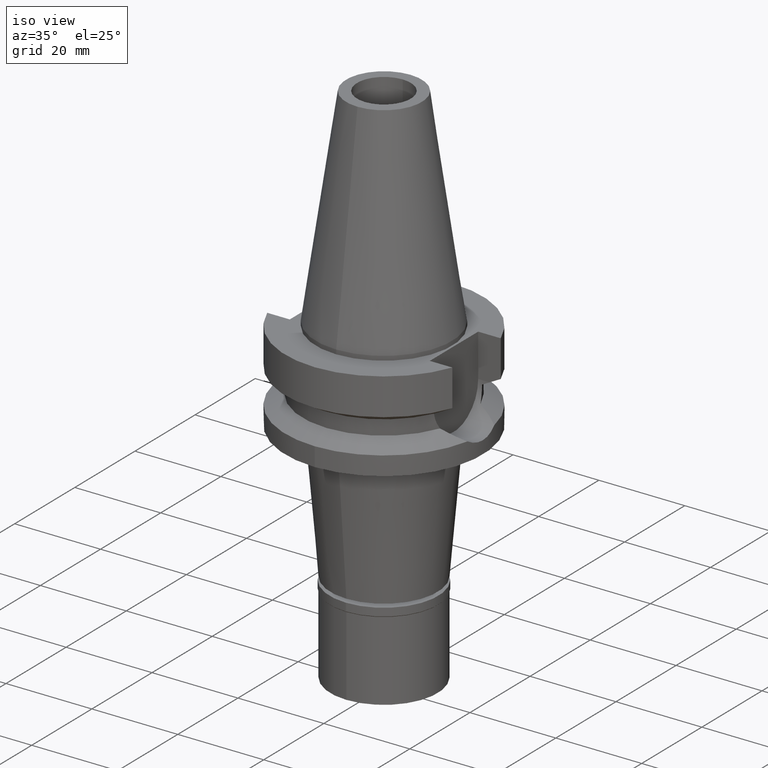
[diagram: clean part render]
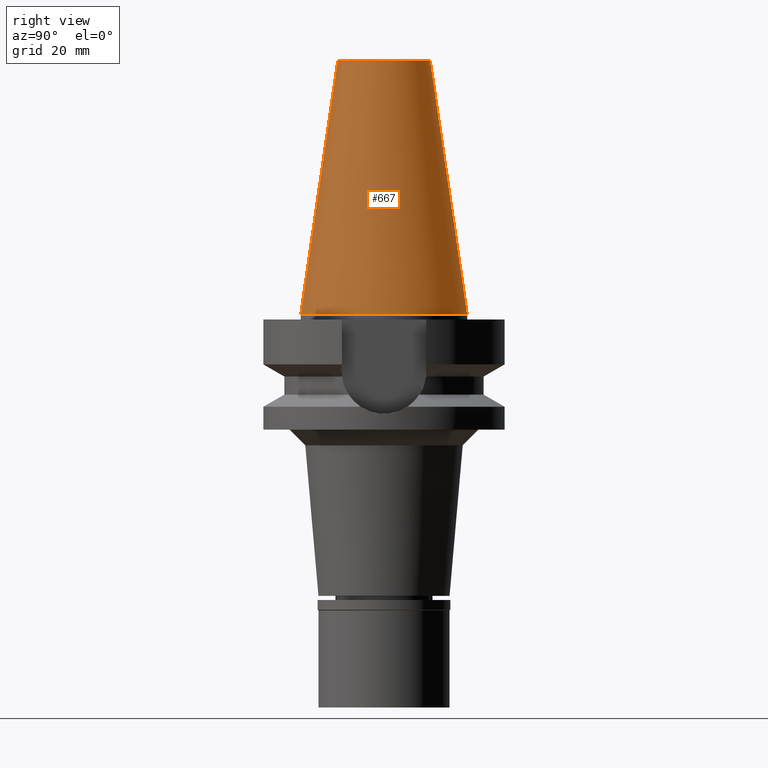
[diagram: tour spotlight — one face highlighted and labeled with its STEP entity id]
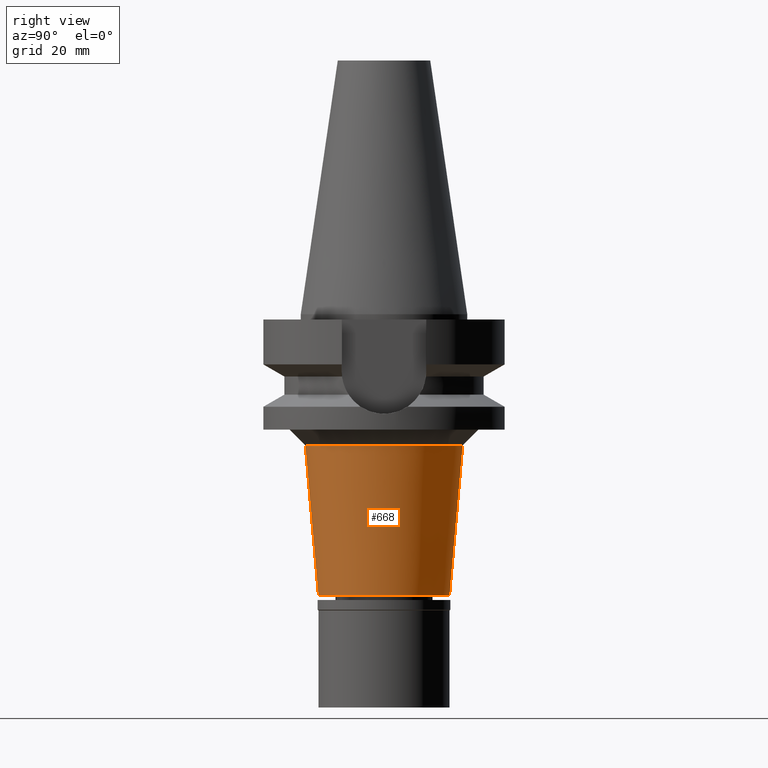
[diagram: tour spotlight — one face highlighted and labeled with its STEP entity id]
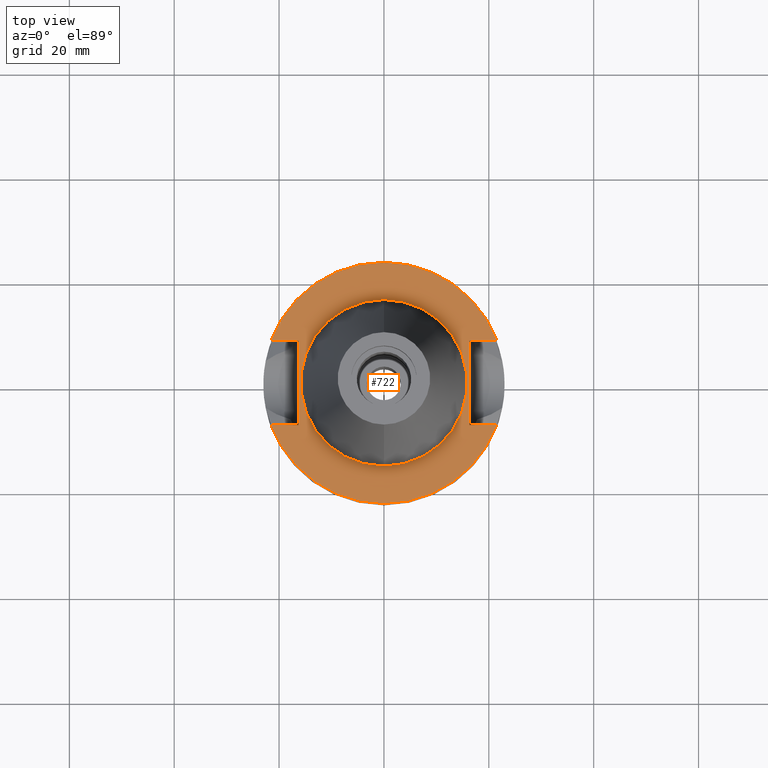
[diagram: tour spotlight — one face highlighted and labeled with its STEP entity id]
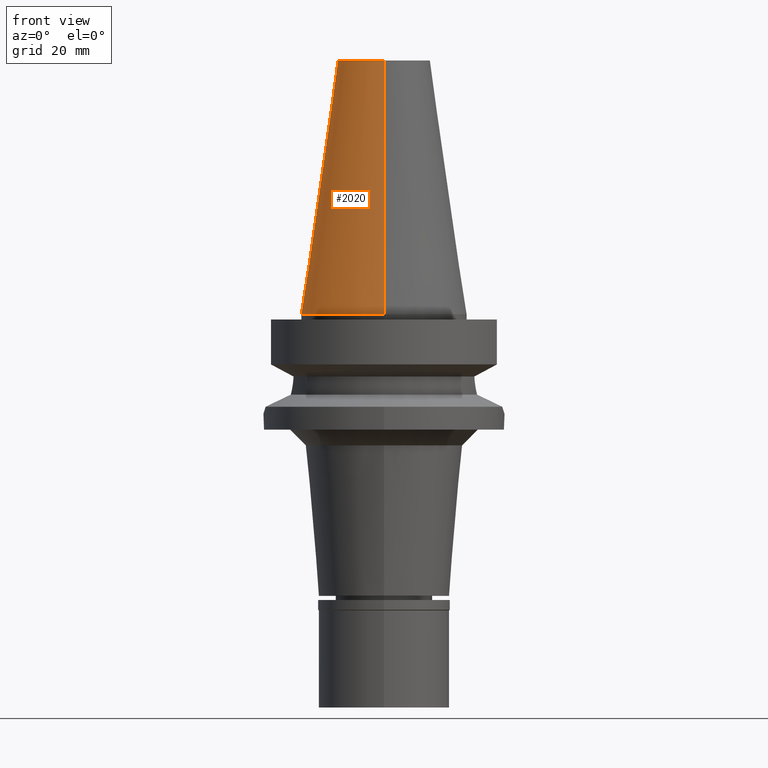
[diagram: tour spotlight — one face highlighted and labeled with its STEP entity id]
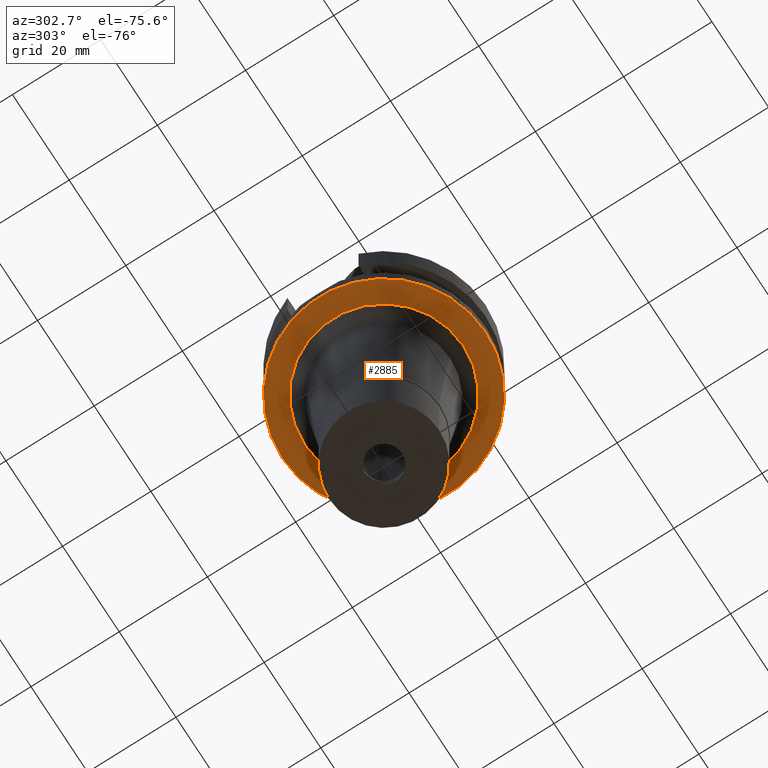
[diagram: tour spotlight — one face highlighted and labeled with its STEP entity id]
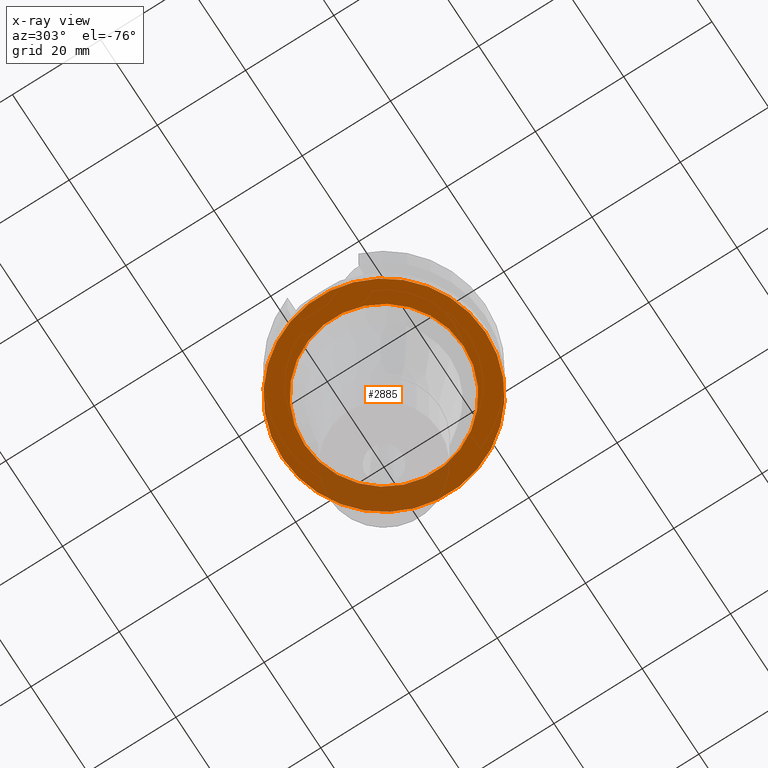
[diagram: x-ray of the same camera — body ghosted, this tour face saturated]
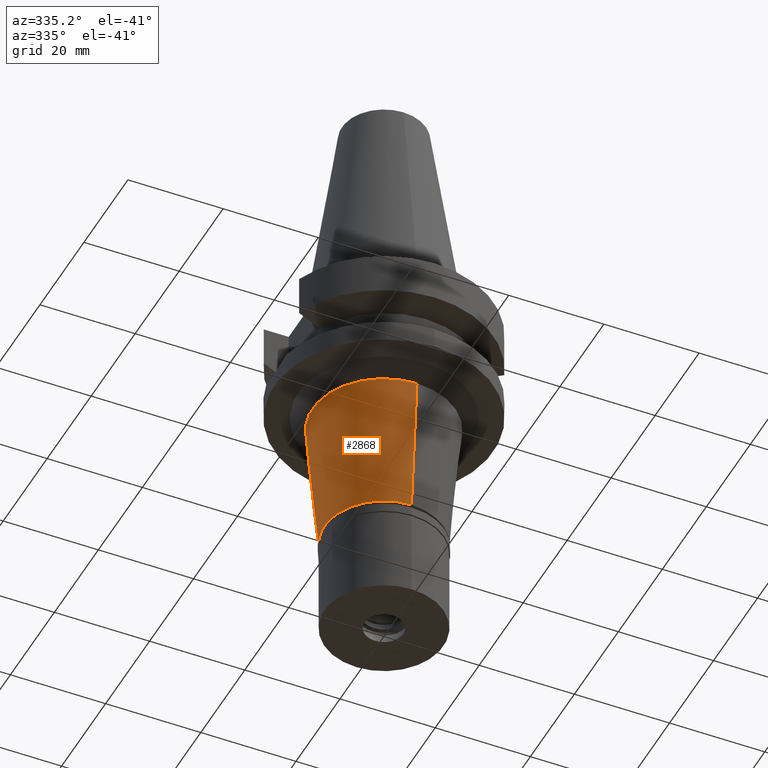
[diagram: tour spotlight — one face highlighted and labeled with its STEP entity id]
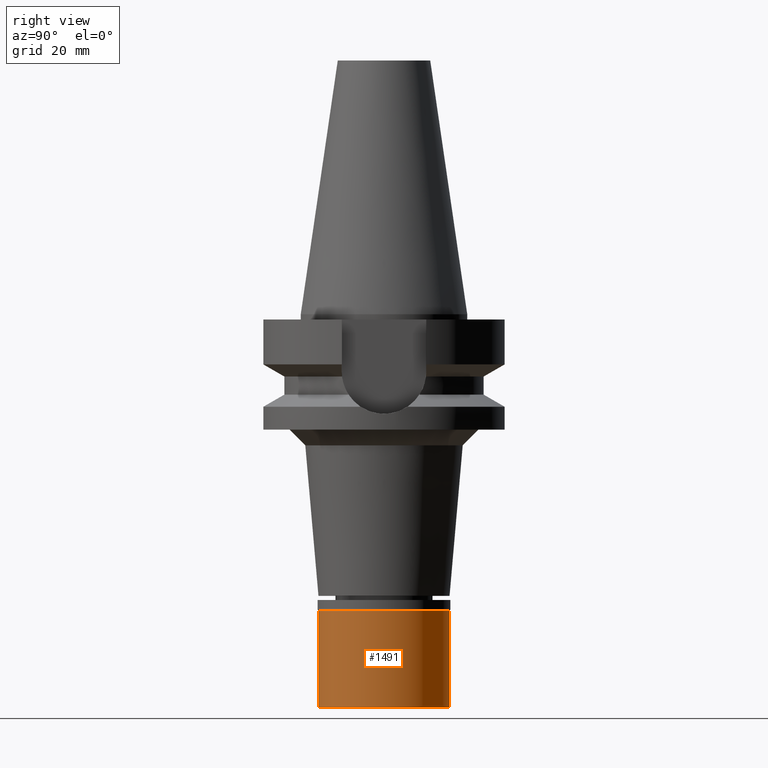
[diagram: tour spotlight — one face highlighted and labeled with its STEP entity id]
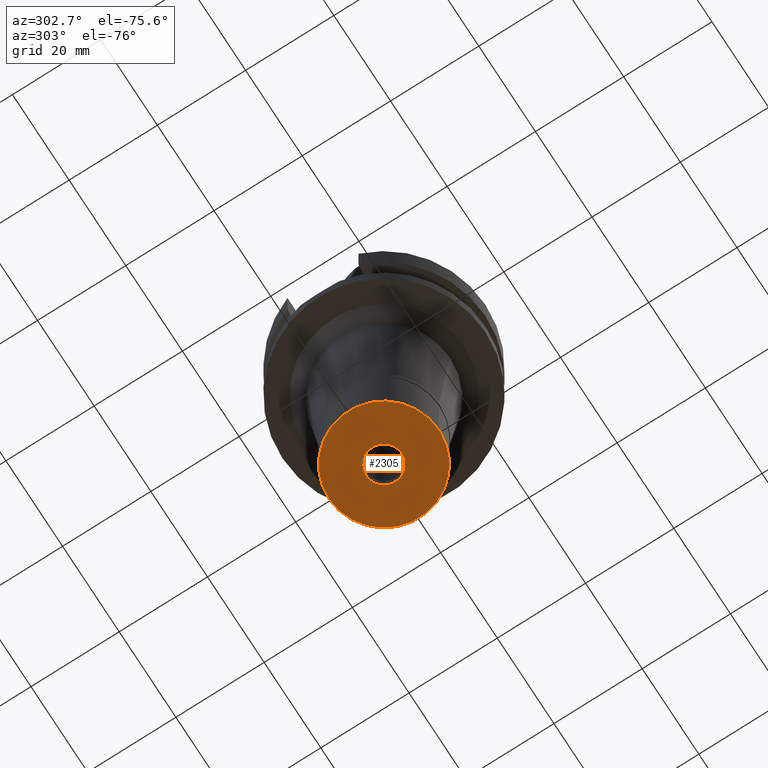
[diagram: tour spotlight — one face highlighted and labeled with its STEP entity id]
A machine part: a face-by-face anatomy tour. The part has 79 B-rep faces; the first image is the clean iso view, then the 8 largest visible faces are spotlighted one at a time (largest first), each with its STEP entity span.

Face 1 — right view, entity #667. In plain terms, the highlighted conical surface has half-angle 8.297 deg.
Definition (entity closure, byte-faithful):
#148 = CIRCLE ( 'NONE', #1289, 15.87500000000000000 ) ;
#263 = DIRECTION ( 'NONE',  ( 0.0000000000000000000, -1.000000000000000000, 0.0000000000000000000 ) ) ;
#347 = VECTOR ( 'NONE', #2709, 1000.000000000000114 ) ;
#378 = ORIENTED_EDGE ( 'NONE', *, *, #1412, .F. ) ;
#443 = CONICAL_SURFACE ( 'NONE', #1953, 12.34589586639000025, 0.1448099680379422438 ) ;
#540 = LINE ( 'NONE', #1994, #347 ) ;
#667 = ADVANCED_FACE ( 'NONE', ( #1416 ), #443, .T. ) ;
#700 = VERTEX_POINT ( 'NONE', #718 ) ;
#718 = CARTESIAN_POINT ( 'NONE',  ( 0.0000000000000000000, -15.87500000000000000, -3.410605131648000255E-13 ) ) ;
#924 = CIRCLE ( 'NONE', #1708, 8.816791732783000768 ) ;
#990 = VERTEX_POINT ( 'NONE', #2731 ) ;
#1059 = LINE ( 'NONE', #2755, #1083 ) ;
#1083 = VECTOR ( 'NONE', #1792, 1000.000000000000114 ) ;
#1289 = AXIS2_PLACEMENT_3D ( 'NONE', #1780, #2254, #2938 ) ;
#1412 = EDGE_CURVE ( 'NONE', #3051, #700, #148, .T. ) ;
#1414 = ORIENTED_EDGE ( 'NONE', *, *, #1427, .T. ) ;
#1416 = FACE_OUTER_BOUND ( 'NONE', #1781, .T. ) ;
#1427 = EDGE_CURVE ( 'NONE', #990, #700, #1059, .T. ) ;
#1708 = AXIS2_PLACEMENT_3D ( 'NONE', #1814, #2072, #2759 ) ;
#1780 = CARTESIAN_POINT ( 'NONE',  ( 0.0000000000000000000, 0.0000000000000000000, -3.410605131648000255E-13 ) ) ;
#1781 = EDGE_LOOP ( 'NONE', ( #1894, #1414, #378, #2650 ) ) ;
#1792 = DIRECTION ( 'NONE',  ( 0.0000000000000000000, -0.1443043893539925626, -0.9895333461855498891 ) ) ;
#1814 = CARTESIAN_POINT ( 'NONE',  ( 0.0000000000000000000, 0.0000000000000000000, 48.39999999999999858 ) ) ;
#1885 = CARTESIAN_POINT ( 'NONE',  ( 0.0000000000000000000, 15.87500000000000000, -1.136868377215999875E-13 ) ) ;
#1894 = ORIENTED_EDGE ( 'NONE', *, *, #2911, .T. ) ;
#1953 = AXIS2_PLACEMENT_3D ( 'NONE', #2388, #2820, #263 ) ;
#1994 = CARTESIAN_POINT ( 'NONE',  ( 0.0000000000000000000, 8.816791732783000768, 48.39999999999999858 ) ) ;
#2072 = DIRECTION ( 'NONE',  ( 0.0000000000000000000, 0.0000000000000000000, -1.000000000000000000 ) ) ;
#2254 = DIRECTION ( 'NONE',  ( 0.0000000000000000000, 0.0000000000000000000, -1.000000000000000000 ) ) ;
#2388 = CARTESIAN_POINT ( 'NONE',  ( 0.0000000000000000000, 0.0000000000000000000, 24.19999999999999929 ) ) ;
#2390 = CARTESIAN_POINT ( 'NONE',  ( 0.0000000000000000000, 8.816791732783000768, 48.39999999999999858 ) ) ;
#2650 = ORIENTED_EDGE ( 'NONE', *, *, #2746, .F. ) ;
#2678 = VERTEX_POINT ( 'NONE', #2390 ) ;
#2709 = DIRECTION ( 'NONE',  ( 0.0000000000000000000, 0.1443043893539925626, -0.9895333461855498891 ) ) ;
#2731 = CARTESIAN_POINT ( 'NONE',  ( 0.0000000000000000000, -8.816791732783000768, 48.39999999999999858 ) ) ;
#2746 = EDGE_CURVE ( 'NONE', #2678, #3051, #540, .T. ) ;
#2755 = CARTESIAN_POINT ( 'NONE',  ( 0.0000000000000000000, -8.816791732783000768, 48.39999999999999858 ) ) ;
#2759 = DIRECTION ( 'NONE',  ( 0.0000000000000000000, 1.000000000000000000, 0.0000000000000000000 ) ) ;
#2820 = DIRECTION ( 'NONE',  ( 0.0000000000000000000, 0.0000000000000000000, -1.000000000000000000 ) ) ;
#2911 = EDGE_CURVE ( 'NONE', #2678, #990, #924, .T. ) ;
#2938 = DIRECTION ( 'NONE',  ( 0.0000000000000000000, 1.000000000000000000, 0.0000000000000000000 ) ) ;
#3051 = VERTEX_POINT ( 'NONE', #1885 ) ;

Face 2 — right view, entity #668. In plain terms, the highlighted conical surface has half-angle 5 deg.
Definition (entity closure, byte-faithful):
#50 = EDGE_CURVE ( 'NONE', #1964, #564, #131, .T. ) ;
#131 = CIRCLE ( 'NONE', #1518, 12.50000000000000000 ) ;
#133 = VECTOR ( 'NONE', #949, 1000.000000000000000 ) ;
#460 = DIRECTION ( 'NONE',  ( 0.0000000000000000000, 1.000000000000000000, 0.0000000000000000000 ) ) ;
#564 = VERTEX_POINT ( 'NONE', #2539 ) ;
#595 = LINE ( 'NONE', #2255, #1336 ) ;
#668 = ADVANCED_FACE ( 'NONE', ( #965 ), #1017, .T. ) ;
#715 = DIRECTION ( 'NONE',  ( 0.0000000000000000000, -1.000000000000000000, 0.0000000000000000000 ) ) ;
#949 = DIRECTION ( 'NONE',  ( 0.0000000000000000000, -0.08715574274756596185, -0.9961946980917535388 ) ) ;
#961 = EDGE_CURVE ( 'NONE', #2275, #1964, #595, .T. ) ;
#962 = CARTESIAN_POINT ( 'NONE',  ( 0.0000000000000000000, 0.0000000000000000000, -25.00000000000000000 ) ) ;
#965 = FACE_OUTER_BOUND ( 'NONE', #1614, .T. ) ;
#1005 = ORIENTED_EDGE ( 'NONE', *, *, #2389, .F. ) ;
#1017 = CONICAL_SURFACE ( 'NONE', #2701, 13.75546232159999960, 0.08726646259969973729 ) ;
#1082 = DIRECTION ( 'NONE',  ( 0.0000000000000000000, 0.08715574274756596185, -0.9961946980917535388 ) ) ;
#1182 = CIRCLE ( 'NONE', #1905, 15.01092464319999920 ) ;
#1336 = VECTOR ( 'NONE', #1082, 1000.000000000000000 ) ;
#1488 = ORIENTED_EDGE ( 'NONE', *, *, #1533, .F. ) ;
#1518 = AXIS2_PLACEMENT_3D ( 'NONE', #2853, #2726, #715 ) ;
#1533 = EDGE_CURVE ( 'NONE', #2275, #2115, #1182, .T. ) ;
#1614 = EDGE_LOOP ( 'NONE', ( #1488, #2224, #2637, #1005 ) ) ;
#1620 = CARTESIAN_POINT ( 'NONE',  ( 0.0000000000000000000, 0.0000000000000000000, -39.35000000000000142 ) ) ;
#1736 = DIRECTION ( 'NONE',  ( 0.0000000000000000000, -1.000000000000000000, 0.0000000000000000000 ) ) ;
#1899 = DIRECTION ( 'NONE',  ( 0.0000000000000000000, 0.0000000000000000000, 1.000000000000000000 ) ) ;
#1901 = DIRECTION ( 'NONE',  ( 0.0000000000000000000, 0.0000000000000000000, 1.000000000000000000 ) ) ;
#1905 = AXIS2_PLACEMENT_3D ( 'NONE', #962, #1899, #1736 ) ;
#1964 = VERTEX_POINT ( 'NONE', #2697 ) ;
#2017 = CARTESIAN_POINT ( 'NONE',  ( 0.0000000000000000000, -15.01092464319000008, -25.00000000000000000 ) ) ;
#2115 = VERTEX_POINT ( 'NONE', #2763 ) ;
#2224 = ORIENTED_EDGE ( 'NONE', *, *, #961, .T. ) ;
#2255 = CARTESIAN_POINT ( 'NONE',  ( 0.0000000000000000000, -15.01092464319000008, -25.00000000000000000 ) ) ;
#2275 = VERTEX_POINT ( 'NONE', #2017 ) ;
#2389 = EDGE_CURVE ( 'NONE', #2115, #564, #2858, .T. ) ;
#2539 = CARTESIAN_POINT ( 'NONE',  ( 0.0000000000000000000, 12.50000000000000000, -53.69999999999999574 ) ) ;
#2637 = ORIENTED_EDGE ( 'NONE', *, *, #50, .T. ) ;
#2697 = CARTESIAN_POINT ( 'NONE',  ( 0.0000000000000000000, -12.50000000000000000, -53.69999999999999574 ) ) ;
#2701 = AXIS2_PLACEMENT_3D ( 'NONE', #1620, #1901, #460 ) ;
#2726 = DIRECTION ( 'NONE',  ( 0.0000000000000000000, 0.0000000000000000000, 1.000000000000000000 ) ) ;
#2763 = CARTESIAN_POINT ( 'NONE',  ( 0.0000000000000000000, 15.01092464319000008, -25.00000000000000000 ) ) ;
#2853 = CARTESIAN_POINT ( 'NONE',  ( 0.0000000000000000000, 0.0000000000000000000, -53.69999999999999574 ) ) ;
#2858 = LINE ( 'NONE', #3063, #133 ) ;
#3063 = CARTESIAN_POINT ( 'NONE',  ( 0.0000000000000000000, 15.01092464319000008, -25.00000000000000000 ) ) ;

Face 3 — top view, entity #722. In plain terms, the highlighted planar face has unit normal (0, 0, -1).
Definition (entity closure, byte-faithful):
#29 = ORIENTED_EDGE ( 'NONE', *, *, #231, .F. ) ;
#85 = VERTEX_POINT ( 'NONE', #2399 ) ;
#107 = ORIENTED_EDGE ( 'NONE', *, *, #1330, .T. ) ;
#121 = CARTESIAN_POINT ( 'NONE',  ( 16.29999999999999716, 8.050000000000000711, -1.000000000000000000 ) ) ;
#130 = DIRECTION ( 'NONE',  ( 0.0000000000000000000, 0.0000000000000000000, -1.000000000000000000 ) ) ;
#177 = AXIS2_PLACEMENT_3D ( 'NONE', #442, #1618, #458 ) ;
#196 = VERTEX_POINT ( 'NONE', #614 ) ;
#218 = EDGE_CURVE ( 'NONE', #865, #2856, #1565, .T. ) ;
#219 = DIRECTION ( 'NONE',  ( 0.0000000000000000000, -1.000000000000000000, 0.0000000000000000000 ) ) ;
#231 = EDGE_CURVE ( 'NONE', #85, #2505, #2551, .T. ) ;
#250 = CARTESIAN_POINT ( 'NONE',  ( 0.0000000000000000000, 0.0000000000000000000, -1.000000000000000000 ) ) ;
#278 = VERTEX_POINT ( 'NONE', #1828 ) ;
#338 = CIRCLE ( 'NONE', #615, 23.00000000000000355 ) ;
#442 = CARTESIAN_POINT ( 'NONE',  ( 0.0000000000000000000, 0.0000000000000000000, -1.000000000000000000 ) ) ;
#458 = DIRECTION ( 'NONE',  ( 0.0000000000000000000, -1.000000000000000000, 0.0000000000000000000 ) ) ;
#481 = EDGE_CURVE ( 'NONE', #196, #2856, #754, .T. ) ;
#505 = CARTESIAN_POINT ( 'NONE',  ( 21.54524309446999908, 8.050000000000000711, -1.000000000000000000 ) ) ;
#506 = CARTESIAN_POINT ( 'NONE',  ( 21.54524309446999908, -8.050000000000000711, -1.000000000000000000 ) ) ;
#614 = CARTESIAN_POINT ( 'NONE',  ( -16.29999999999999716, -8.050000000000000711, -1.000000000000000000 ) ) ;
#615 = AXIS2_PLACEMENT_3D ( 'NONE', #1037, #130, #833 ) ;
#623 = LINE ( 'NONE', #1578, #1530 ) ;
#673 = DIRECTION ( 'NONE',  ( 0.0000000000000000000, 0.0000000000000000000, 1.000000000000000000 ) ) ;
#705 = AXIS2_PLACEMENT_3D ( 'NONE', #250, #2134, #948 ) ;
#712 = EDGE_LOOP ( 'NONE', ( #29, #2492 ) ) ;
#722 = ADVANCED_FACE ( 'NONE', ( #921, #2372 ), #2086, .F. ) ;
#724 = VERTEX_POINT ( 'NONE', #2834 ) ;
#754 = LINE ( 'NONE', #1705, #3048 ) ;
#833 = DIRECTION ( 'NONE',  ( -0.9367496997597649644, 0.3499999999999864886, 0.0000000000000000000 ) ) ;
#865 = VERTEX_POINT ( 'NONE', #1734 ) ;
#921 = FACE_OUTER_BOUND ( 'NONE', #2584, .T. ) ;
#940 = EDGE_CURVE ( 'NONE', #2870, #2095, #1545, .T. ) ;
#948 = DIRECTION ( 'NONE',  ( 0.0000000000000000000, -1.000000000000000000, 0.0000000000000000000 ) ) ;
#1030 = LINE ( 'NONE', #1521, #2615 ) ;
#1037 = CARTESIAN_POINT ( 'NONE',  ( 0.0000000000000000000, 0.0000000000000000000, -1.000000000000000000 ) ) ;
#1087 = DIRECTION ( 'NONE',  ( 0.0000000000000000000, 1.000000000000000000, 0.0000000000000000000 ) ) ;
#1106 = DIRECTION ( 'NONE',  ( 1.000000000000000000, 9.313164748262000573E-14, 0.0000000000000000000 ) ) ;
#1113 = CARTESIAN_POINT ( 'NONE',  ( -21.54524309446999908, 8.050000000000000711, -1.000000000000000000 ) ) ;
#1139 = ORIENTED_EDGE ( 'NONE', *, *, #2613, .F. ) ;
#1147 = EDGE_CURVE ( 'NONE', #278, #196, #1030, .T. ) ;
#1211 = AXIS2_PLACEMENT_3D ( 'NONE', #2794, #673, #1087 ) ;
#1314 = DIRECTION ( 'NONE',  ( 0.0000000000000000000, -1.000000000000000000, 0.0000000000000000000 ) ) ;
#1330 = EDGE_CURVE ( 'NONE', #1561, #2095, #623, .T. ) ;
#1366 = DIRECTION ( 'NONE',  ( -1.000000000000000000, 9.347030801892000173E-14, 0.0000000000000000000 ) ) ;
#1397 = CARTESIAN_POINT ( 'NONE',  ( 16.29999999999999716, -8.050000000000000711, -1.000000000000000000 ) ) ;
#1521 = CARTESIAN_POINT ( 'NONE',  ( -21.54524309446999908, -8.050000000000000711, -1.000000000000000000 ) ) ;
#1530 = VECTOR ( 'NONE', #1366, 1000.000000000000000 ) ;
#1545 = LINE ( 'NONE', #121, #2748 ) ;
#1561 = VERTEX_POINT ( 'NONE', #506 ) ;
#1565 = LINE ( 'NONE', #1113, #1845 ) ;
#1578 = CARTESIAN_POINT ( 'NONE',  ( 21.54524309446999908, -8.050000000000000711, -1.000000000000000000 ) ) ;
#1618 = DIRECTION ( 'NONE',  ( 0.0000000000000000000, 0.0000000000000000000, -1.000000000000000000 ) ) ;
#1705 = CARTESIAN_POINT ( 'NONE',  ( -16.29999999999999716, -8.050000000000000711, -1.000000000000000000 ) ) ;
#1734 = CARTESIAN_POINT ( 'NONE',  ( -21.54524309446999908, 8.050000000000000711, -1.000000000000000000 ) ) ;
#1787 = CARTESIAN_POINT ( 'NONE',  ( 16.29999999999999716, 8.050000000000000711, -1.000000000000000000 ) ) ;
#1806 = LINE ( 'NONE', #505, #1944 ) ;
#1828 = CARTESIAN_POINT ( 'NONE',  ( -21.54524309446999908, -8.050000000000000711, -1.000000000000000000 ) ) ;
#1845 = VECTOR ( 'NONE', #2762, 1000.000000000000000 ) ;
#1937 = CARTESIAN_POINT ( 'NONE',  ( 0.0000000000000000000, -15.87500000000000000, -1.000000000000000000 ) ) ;
#1944 = VECTOR ( 'NONE', #2949, 1000.000000000000000 ) ;
#1981 = EDGE_CURVE ( 'NONE', #724, #2870, #1806, .T. ) ;
#1986 = EDGE_CURVE ( 'NONE', #865, #724, #338, .T. ) ;
#1988 = ORIENTED_EDGE ( 'NONE', *, *, #940, .F. ) ;
#2000 = AXIS2_PLACEMENT_3D ( 'NONE', #2840, #2359, #219 ) ;
#2068 = ORIENTED_EDGE ( 'NONE', *, *, #481, .F. ) ;
#2086 = PLANE ( 'NONE',  #705 ) ;
#2095 = VERTEX_POINT ( 'NONE', #1397 ) ;
#2130 = ORIENTED_EDGE ( 'NONE', *, *, #1981, .F. ) ;
#2134 = DIRECTION ( 'NONE',  ( 0.0000000000000000000, 0.0000000000000000000, -1.000000000000000000 ) ) ;
#2357 = CIRCLE ( 'NONE', #177, 23.00000000000000000 ) ;
#2359 = DIRECTION ( 'NONE',  ( 0.0000000000000000000, 0.0000000000000000000, 1.000000000000000000 ) ) ;
#2372 = FACE_BOUND ( 'NONE', #712, .T. ) ;
#2379 = ORIENTED_EDGE ( 'NONE', *, *, #218, .T. ) ;
#2399 = CARTESIAN_POINT ( 'NONE',  ( 0.0000000000000000000, 15.87500000000000000, -1.000000000000000000 ) ) ;
#2436 = ORIENTED_EDGE ( 'NONE', *, *, #1147, .F. ) ;
#2492 = ORIENTED_EDGE ( 'NONE', *, *, #2554, .F. ) ;
#2505 = VERTEX_POINT ( 'NONE', #1937 ) ;
#2551 = CIRCLE ( 'NONE', #1211, 15.87500000000000000 ) ;
#2554 = EDGE_CURVE ( 'NONE', #2505, #85, #2736, .T. ) ;
#2584 = EDGE_LOOP ( 'NONE', ( #2436, #1139, #107, #1988, #2130, #3042, #2379, #2068 ) ) ;
#2613 = EDGE_CURVE ( 'NONE', #1561, #278, #2357, .T. ) ;
#2615 = VECTOR ( 'NONE', #1106, 1000.000000000000000 ) ;
#2662 = DIRECTION ( 'NONE',  ( 0.0000000000000000000, 1.000000000000000000, 0.0000000000000000000 ) ) ;
#2736 = CIRCLE ( 'NONE', #2000, 15.87500000000000000 ) ;
#2742 = CARTESIAN_POINT ( 'NONE',  ( -16.29999999999999716, 8.050000000000000711, -1.000000000000000000 ) ) ;
#2748 = VECTOR ( 'NONE', #1314, 1000.000000000000000 ) ;
#2762 = DIRECTION ( 'NONE',  ( 1.000000000000000000, -9.347030801892000173E-14, 0.0000000000000000000 ) ) ;
#2794 = CARTESIAN_POINT ( 'NONE',  ( 0.0000000000000000000, 0.0000000000000000000, -1.000000000000000000 ) ) ;
#2834 = CARTESIAN_POINT ( 'NONE',  ( 21.54524309446999908, 8.050000000000000711, -1.000000000000000000 ) ) ;
#2840 = CARTESIAN_POINT ( 'NONE',  ( 0.0000000000000000000, 0.0000000000000000000, -1.000000000000000000 ) ) ;
#2856 = VERTEX_POINT ( 'NONE', #2742 ) ;
#2870 = VERTEX_POINT ( 'NONE', #1787 ) ;
#2949 = DIRECTION ( 'NONE',  ( -1.000000000000000000, -9.380896855521999773E-14, 0.0000000000000000000 ) ) ;
#3042 = ORIENTED_EDGE ( 'NONE', *, *, #1986, .F. ) ;
#3048 = VECTOR ( 'NONE', #2662, 1000.000000000000000 ) ;

Face 4 — front view, entity #2020. In plain terms, the highlighted conical surface has half-angle 8.297 deg.
Definition (entity closure, byte-faithful):
#243 = ORIENTED_EDGE ( 'NONE', *, *, #2746, .T. ) ;
#249 = CIRCLE ( 'NONE', #1029, 8.816791732783000768 ) ;
#345 = DIRECTION ( 'NONE',  ( 0.0000000000000000000, 0.0000000000000000000, -1.000000000000000000 ) ) ;
#347 = VECTOR ( 'NONE', #2709, 1000.000000000000114 ) ;
#540 = LINE ( 'NONE', #1994, #347 ) ;
#626 = ORIENTED_EDGE ( 'NONE', *, *, #2231, .F. ) ;
#700 = VERTEX_POINT ( 'NONE', #718 ) ;
#718 = CARTESIAN_POINT ( 'NONE',  ( 0.0000000000000000000, -15.87500000000000000, -3.410605131648000255E-13 ) ) ;
#735 = DIRECTION ( 'NONE',  ( 0.0000000000000000000, -1.000000000000000000, 0.0000000000000000000 ) ) ;
#779 = DIRECTION ( 'NONE',  ( 0.0000000000000000000, -1.000000000000000000, 0.0000000000000000000 ) ) ;
#953 = AXIS2_PLACEMENT_3D ( 'NONE', #2506, #345, #1259 ) ;
#990 = VERTEX_POINT ( 'NONE', #2731 ) ;
#1029 = AXIS2_PLACEMENT_3D ( 'NONE', #1973, #2923, #779 ) ;
#1059 = LINE ( 'NONE', #2755, #1083 ) ;
#1083 = VECTOR ( 'NONE', #1792, 1000.000000000000114 ) ;
#1259 = DIRECTION ( 'NONE',  ( 0.0000000000000000000, -1.000000000000000000, 0.0000000000000000000 ) ) ;
#1427 = EDGE_CURVE ( 'NONE', #990, #700, #1059, .T. ) ;
#1500 = FACE_OUTER_BOUND ( 'NONE', #1975, .T. ) ;
#1557 = CIRCLE ( 'NONE', #1603, 15.87500000000000000 ) ;
#1603 = AXIS2_PLACEMENT_3D ( 'NONE', #2875, #2391, #735 ) ;
#1733 = EDGE_CURVE ( 'NONE', #990, #2678, #249, .T. ) ;
#1792 = DIRECTION ( 'NONE',  ( 0.0000000000000000000, -0.1443043893539925626, -0.9895333461855498891 ) ) ;
#1858 = ORIENTED_EDGE ( 'NONE', *, *, #1427, .F. ) ;
#1885 = CARTESIAN_POINT ( 'NONE',  ( 0.0000000000000000000, 15.87500000000000000, -1.136868377215999875E-13 ) ) ;
#1973 = CARTESIAN_POINT ( 'NONE',  ( 0.0000000000000000000, 0.0000000000000000000, 48.39999999999999858 ) ) ;
#1975 = EDGE_LOOP ( 'NONE', ( #626, #1858, #2536, #243 ) ) ;
#1994 = CARTESIAN_POINT ( 'NONE',  ( 0.0000000000000000000, 8.816791732783000768, 48.39999999999999858 ) ) ;
#2020 = ADVANCED_FACE ( 'NONE', ( #1500 ), #2545, .T. ) ;
#2231 = EDGE_CURVE ( 'NONE', #700, #3051, #1557, .T. ) ;
#2390 = CARTESIAN_POINT ( 'NONE',  ( 0.0000000000000000000, 8.816791732783000768, 48.39999999999999858 ) ) ;
#2391 = DIRECTION ( 'NONE',  ( 0.0000000000000000000, 0.0000000000000000000, -1.000000000000000000 ) ) ;
#2506 = CARTESIAN_POINT ( 'NONE',  ( 0.0000000000000000000, 0.0000000000000000000, 24.19999999999999929 ) ) ;
#2536 = ORIENTED_EDGE ( 'NONE', *, *, #1733, .T. ) ;
#2545 = CONICAL_SURFACE ( 'NONE', #953, 12.34589586639000025, 0.1448099680379422438 ) ;
#2678 = VERTEX_POINT ( 'NONE', #2390 ) ;
#2709 = DIRECTION ( 'NONE',  ( 0.0000000000000000000, 0.1443043893539925626, -0.9895333461855498891 ) ) ;
#2731 = CARTESIAN_POINT ( 'NONE',  ( 0.0000000000000000000, -8.816791732783000768, 48.39999999999999858 ) ) ;
#2746 = EDGE_CURVE ( 'NONE', #2678, #3051, #540, .T. ) ;
#2755 = CARTESIAN_POINT ( 'NONE',  ( 0.0000000000000000000, -8.816791732783000768, 48.39999999999999858 ) ) ;
#2875 = CARTESIAN_POINT ( 'NONE',  ( 0.0000000000000000000, 0.0000000000000000000, -3.410605131648000255E-13 ) ) ;
#2923 = DIRECTION ( 'NONE',  ( 0.0000000000000000000, 0.0000000000000000000, -1.000000000000000000 ) ) ;
#3051 = VERTEX_POINT ( 'NONE', #1885 ) ;

Face 5 — auxiliary view, entity #2885. An x-ray twin of the same camera follows (body ghosted, this face saturated) — the face is partly hidden behind the body. In plain terms, the highlighted planar face has unit normal (0, 0, -1).
Definition (entity closure, byte-faithful):
#402 = FACE_OUTER_BOUND ( 'NONE', #935, .T. ) ;
#459 = DIRECTION ( 'NONE',  ( 0.0000000000000000000, 1.000000000000000000, 0.0000000000000000000 ) ) ;
#560 = VERTEX_POINT ( 'NONE', #638 ) ;
#612 = CARTESIAN_POINT ( 'NONE',  ( 0.0000000000000000000, 0.0000000000000000000, -22.00000000000000000 ) ) ;
#638 = CARTESIAN_POINT ( 'NONE',  ( 0.0000000000000000000, 18.01092464318999831, -22.00000000000000000 ) ) ;
#665 = CIRCLE ( 'NONE', #1217, 18.01092464318999831 ) ;
#766 = DIRECTION ( 'NONE',  ( 0.0000000000000000000, -1.000000000000000000, 0.0000000000000000000 ) ) ;
#913 = VERTEX_POINT ( 'NONE', #1472 ) ;
#914 = AXIS2_PLACEMENT_3D ( 'NONE', #612, #3001, #2555 ) ;
#935 = EDGE_LOOP ( 'NONE', ( #1632, #2783 ) ) ;
#960 = DIRECTION ( 'NONE',  ( 0.0000000000000000000, 0.0000000000000000000, -1.000000000000000000 ) ) ;
#1130 = CIRCLE ( 'NONE', #1582, 18.01092464318999831 ) ;
#1152 = EDGE_CURVE ( 'NONE', #913, #2267, #3008, .T. ) ;
#1174 = DIRECTION ( 'NONE',  ( 0.0000000000000000000, 0.0000000000000000000, -1.000000000000000000 ) ) ;
#1217 = AXIS2_PLACEMENT_3D ( 'NONE', #3064, #1174, #2374 ) ;
#1278 = AXIS2_PLACEMENT_3D ( 'NONE', #2298, #1823, #459 ) ;
#1437 = CARTESIAN_POINT ( 'NONE',  ( 0.0000000000000000000, -18.01092464318999831, -22.00000000000000000 ) ) ;
#1472 = CARTESIAN_POINT ( 'NONE',  ( 0.0000000000000000000, 23.00000000000000000, -22.00000000000000000 ) ) ;
#1582 = AXIS2_PLACEMENT_3D ( 'NONE', #2903, #960, #766 ) ;
#1630 = ORIENTED_EDGE ( 'NONE', *, *, #1673, .F. ) ;
#1632 = ORIENTED_EDGE ( 'NONE', *, *, #1152, .F. ) ;
#1671 = CARTESIAN_POINT ( 'NONE',  ( 0.0000000000000000000, 0.0000000000000000000, -22.00000000000000000 ) ) ;
#1673 = EDGE_CURVE ( 'NONE', #1926, #560, #1130, .T. ) ;
#1726 = ORIENTED_EDGE ( 'NONE', *, *, #3011, .F. ) ;
#1745 = EDGE_CURVE ( 'NONE', #2267, #913, #2380, .T. ) ;
#1823 = DIRECTION ( 'NONE',  ( 0.0000000000000000000, 0.0000000000000000000, 1.000000000000000000 ) ) ;
#1926 = VERTEX_POINT ( 'NONE', #1437 ) ;
#2228 = DIRECTION ( 'NONE',  ( 0.0000000000000000000, -1.000000000000000000, 0.0000000000000000000 ) ) ;
#2267 = VERTEX_POINT ( 'NONE', #2270 ) ;
#2270 = CARTESIAN_POINT ( 'NONE',  ( 0.0000000000000000000, -23.00000000000000000, -22.00000000000000000 ) ) ;
#2298 = CARTESIAN_POINT ( 'NONE',  ( 0.0000000000000000000, 0.0000000000000000000, -22.00000000000000000 ) ) ;
#2300 = FACE_BOUND ( 'NONE', #2818, .T. ) ;
#2374 = DIRECTION ( 'NONE',  ( 0.0000000000000000000, 1.000000000000000000, 0.0000000000000000000 ) ) ;
#2380 = CIRCLE ( 'NONE', #2756, 23.00000000000000000 ) ;
#2555 = DIRECTION ( 'NONE',  ( 0.0000000000000000000, -1.000000000000000000, 0.0000000000000000000 ) ) ;
#2625 = DIRECTION ( 'NONE',  ( 0.0000000000000000000, 0.0000000000000000000, 1.000000000000000000 ) ) ;
#2733 = PLANE ( 'NONE',  #914 ) ;
#2756 = AXIS2_PLACEMENT_3D ( 'NONE', #1671, #2625, #2228 ) ;
#2783 = ORIENTED_EDGE ( 'NONE', *, *, #1745, .F. ) ;
#2818 = EDGE_LOOP ( 'NONE', ( #1726, #1630 ) ) ;
#2885 = ADVANCED_FACE ( 'NONE', ( #402, #2300 ), #2733, .T. ) ;
#2903 = CARTESIAN_POINT ( 'NONE',  ( 0.0000000000000000000, 0.0000000000000000000, -22.00000000000000000 ) ) ;
#3001 = DIRECTION ( 'NONE',  ( 0.0000000000000000000, 0.0000000000000000000, -1.000000000000000000 ) ) ;
#3008 = CIRCLE ( 'NONE', #1278, 23.00000000000000000 ) ;
#3011 = EDGE_CURVE ( 'NONE', #560, #1926, #665, .T. ) ;
#3064 = CARTESIAN_POINT ( 'NONE',  ( 0.0000000000000000000, 0.0000000000000000000, -22.00000000000000000 ) ) ;

Face 6 — auxiliary view, entity #2868. In plain terms, the highlighted conical surface has half-angle 5 deg.
Definition (entity closure, byte-faithful):
#133 = VECTOR ( 'NONE', #949, 1000.000000000000000 ) ;
#150 = ORIENTED_EDGE ( 'NONE', *, *, #961, .F. ) ;
#157 = DIRECTION ( 'NONE',  ( 0.0000000000000000000, 0.0000000000000000000, 1.000000000000000000 ) ) ;
#355 = CIRCLE ( 'NONE', #1660, 12.50000000000000000 ) ;
#564 = VERTEX_POINT ( 'NONE', #2539 ) ;
#595 = LINE ( 'NONE', #2255, #1336 ) ;
#639 = DIRECTION ( 'NONE',  ( 0.0000000000000000000, 0.0000000000000000000, -1.000000000000000000 ) ) ;
#651 = CARTESIAN_POINT ( 'NONE',  ( 0.0000000000000000000, 0.0000000000000000000, -39.35000000000000142 ) ) ;
#776 = EDGE_LOOP ( 'NONE', ( #1302, #150, #2048, #1369 ) ) ;
#949 = DIRECTION ( 'NONE',  ( 0.0000000000000000000, -0.08715574274756596185, -0.9961946980917535388 ) ) ;
#961 = EDGE_CURVE ( 'NONE', #2275, #1964, #595, .T. ) ;
#1082 = DIRECTION ( 'NONE',  ( 0.0000000000000000000, 0.08715574274756596185, -0.9961946980917535388 ) ) ;
#1109 = FACE_OUTER_BOUND ( 'NONE', #776, .T. ) ;
#1176 = AXIS2_PLACEMENT_3D ( 'NONE', #1320, #639, #1393 ) ;
#1293 = EDGE_CURVE ( 'NONE', #564, #1964, #355, .T. ) ;
#1302 = ORIENTED_EDGE ( 'NONE', *, *, #1293, .T. ) ;
#1320 = CARTESIAN_POINT ( 'NONE',  ( 0.0000000000000000000, 0.0000000000000000000, -25.00000000000000000 ) ) ;
#1336 = VECTOR ( 'NONE', #1082, 1000.000000000000000 ) ;
#1369 = ORIENTED_EDGE ( 'NONE', *, *, #2389, .T. ) ;
#1393 = DIRECTION ( 'NONE',  ( 0.0000000000000000000, -1.000000000000000000, 0.0000000000000000000 ) ) ;
#1477 = CONICAL_SURFACE ( 'NONE', #3053, 13.75546232159999960, 0.08726646259969973729 ) ;
#1592 = DIRECTION ( 'NONE',  ( 0.0000000000000000000, 1.000000000000000000, 0.0000000000000000000 ) ) ;
#1660 = AXIS2_PLACEMENT_3D ( 'NONE', #1793, #157, #2084 ) ;
#1793 = CARTESIAN_POINT ( 'NONE',  ( 0.0000000000000000000, 0.0000000000000000000, -53.69999999999999574 ) ) ;
#1825 = DIRECTION ( 'NONE',  ( 0.0000000000000000000, 0.0000000000000000000, 1.000000000000000000 ) ) ;
#1964 = VERTEX_POINT ( 'NONE', #2697 ) ;
#2017 = CARTESIAN_POINT ( 'NONE',  ( 0.0000000000000000000, -15.01092464319000008, -25.00000000000000000 ) ) ;
#2048 = ORIENTED_EDGE ( 'NONE', *, *, #2932, .T. ) ;
#2084 = DIRECTION ( 'NONE',  ( 0.0000000000000000000, 1.000000000000000000, 0.0000000000000000000 ) ) ;
#2115 = VERTEX_POINT ( 'NONE', #2763 ) ;
#2116 = CIRCLE ( 'NONE', #1176, 15.01092464319000008 ) ;
#2255 = CARTESIAN_POINT ( 'NONE',  ( 0.0000000000000000000, -15.01092464319000008, -25.00000000000000000 ) ) ;
#2275 = VERTEX_POINT ( 'NONE', #2017 ) ;
#2389 = EDGE_CURVE ( 'NONE', #2115, #564, #2858, .T. ) ;
#2539 = CARTESIAN_POINT ( 'NONE',  ( 0.0000000000000000000, 12.50000000000000000, -53.69999999999999574 ) ) ;
#2697 = CARTESIAN_POINT ( 'NONE',  ( 0.0000000000000000000, -12.50000000000000000, -53.69999999999999574 ) ) ;
#2763 = CARTESIAN_POINT ( 'NONE',  ( 0.0000000000000000000, 15.01092464319000008, -25.00000000000000000 ) ) ;
#2858 = LINE ( 'NONE', #3063, #133 ) ;
#2868 = ADVANCED_FACE ( 'NONE', ( #1109 ), #1477, .T. ) ;
#2932 = EDGE_CURVE ( 'NONE', #2275, #2115, #2116, .T. ) ;
#3053 = AXIS2_PLACEMENT_3D ( 'NONE', #651, #1825, #1592 ) ;
#3063 = CARTESIAN_POINT ( 'NONE',  ( 0.0000000000000000000, 15.01092464319000008, -25.00000000000000000 ) ) ;

Face 7 — right view, entity #1491. In plain terms, the highlighted cylindrical surface (partial cylindrical patch) has radius 12.5 mm, axis along (0, 0, -1).
Definition (entity closure, byte-faithful):
#33 = DIRECTION ( 'NONE',  ( 0.0000000000000000000, 1.000000000000000000, 0.0000000000000000000 ) ) ;
#36 = ORIENTED_EDGE ( 'NONE', *, *, #995, .F. ) ;
#110 = DIRECTION ( 'NONE',  ( 0.0000000000000000000, 0.0000000000000000000, -1.000000000000000000 ) ) ;
#145 = CARTESIAN_POINT ( 'NONE',  ( 0.0000000000000000000, 0.0000000000000000000, -20.50000000000000000 ) ) ;
#154 = ORIENTED_EDGE ( 'NONE', *, *, #1625, .T. ) ;
#261 = DIRECTION ( 'NONE',  ( 0.0000000000000000000, -1.000000000000000000, 0.0000000000000000000 ) ) ;
#277 = CARTESIAN_POINT ( 'NONE',  ( 0.0000000000000000000, 0.0000000000000000000, -2.000000000000000000 ) ) ;
#320 = CARTESIAN_POINT ( 'NONE',  ( 0.0000000000000000000, 12.50000000000000000, -2.000000000000000000 ) ) ;
#406 = CIRCLE ( 'NONE', #770, 12.50000000000000000 ) ;
#413 = FACE_OUTER_BOUND ( 'NONE', #741, .T. ) ;
#479 = CARTESIAN_POINT ( 'NONE',  ( 0.0000000000000000000, 0.0000000000000000000, 0.0000000000000000000 ) ) ;
#657 = VECTOR ( 'NONE', #2104, 1000.000000000000000 ) ;
#684 = LINE ( 'NONE', #320, #1807 ) ;
#704 = CARTESIAN_POINT ( 'NONE',  ( 0.0000000000000000000, -12.50000000000000000, -2.000000000000000000 ) ) ;
#717 = AXIS2_PLACEMENT_3D ( 'NONE', #479, #1859, #261 ) ;
#741 = EDGE_LOOP ( 'NONE', ( #154, #1641, #1681, #36 ) ) ;
#770 = AXIS2_PLACEMENT_3D ( 'NONE', #277, #1209, #33 ) ;
#835 = VERTEX_POINT ( 'NONE', #2161 ) ;
#905 = LINE ( 'NONE', #704, #657 ) ;
#995 = EDGE_CURVE ( 'NONE', #835, #1883, #684, .T. ) ;
#1209 = DIRECTION ( 'NONE',  ( 0.0000000000000000000, 0.0000000000000000000, -1.000000000000000000 ) ) ;
#1491 = ADVANCED_FACE ( 'NONE', ( #413 ), #2994, .T. ) ;
#1495 = VERTEX_POINT ( 'NONE', #2640 ) ;
#1564 = DIRECTION ( 'NONE',  ( 0.0000000000000000000, 0.0000000000000000000, 1.000000000000000000 ) ) ;
#1625 = EDGE_CURVE ( 'NONE', #835, #1495, #406, .T. ) ;
#1641 = ORIENTED_EDGE ( 'NONE', *, *, #2573, .T. ) ;
#1681 = ORIENTED_EDGE ( 'NONE', *, *, #2869, .T. ) ;
#1807 = VECTOR ( 'NONE', #110, 1000.000000000000000 ) ;
#1859 = DIRECTION ( 'NONE',  ( 0.0000000000000000000, 0.0000000000000000000, -1.000000000000000000 ) ) ;
#1871 = CARTESIAN_POINT ( 'NONE',  ( 0.0000000000000000000, 12.50000000000000000, -20.50000000000000000 ) ) ;
#1883 = VERTEX_POINT ( 'NONE', #1871 ) ;
#2104 = DIRECTION ( 'NONE',  ( 0.0000000000000000000, 0.0000000000000000000, -1.000000000000000000 ) ) ;
#2161 = CARTESIAN_POINT ( 'NONE',  ( 0.0000000000000000000, 12.50000000000000000, -2.000000000000000000 ) ) ;
#2329 = AXIS2_PLACEMENT_3D ( 'NONE', #145, #1564, #2335 ) ;
#2335 = DIRECTION ( 'NONE',  ( 0.0000000000000000000, -1.000000000000000000, 0.0000000000000000000 ) ) ;
#2463 = VERTEX_POINT ( 'NONE', #2910 ) ;
#2573 = EDGE_CURVE ( 'NONE', #1495, #2463, #905, .T. ) ;
#2640 = CARTESIAN_POINT ( 'NONE',  ( 0.0000000000000000000, -12.50000000000000000, -2.000000000000000000 ) ) ;
#2706 = CIRCLE ( 'NONE', #2329, 12.50000000000000000 ) ;
#2869 = EDGE_CURVE ( 'NONE', #2463, #1883, #2706, .T. ) ;
#2910 = CARTESIAN_POINT ( 'NONE',  ( 0.0000000000000000000, -12.50000000000000000, -20.50000000000000000 ) ) ;
#2994 = CYLINDRICAL_SURFACE ( 'NONE', #717, 12.50000000000000000 ) ;

Face 8 — auxiliary view, entity #2305. In plain terms, the highlighted planar face has unit normal (0, 0, -1).
Definition (entity closure, byte-faithful):
#52 = CARTESIAN_POINT ( 'NONE',  ( 0.0000000000000000000, 0.0000000000000000000, -20.50000000000000000 ) ) ;
#145 = CARTESIAN_POINT ( 'NONE',  ( 0.0000000000000000000, 0.0000000000000000000, -20.50000000000000000 ) ) ;
#223 = ORIENTED_EDGE ( 'NONE', *, *, #780, .F. ) ;
#236 = AXIS2_PLACEMENT_3D ( 'NONE', #2453, #1478, #1983 ) ;
#262 = EDGE_CURVE ( 'NONE', #609, #933, #2006, .T. ) ;
#291 = CIRCLE ( 'NONE', #236, 12.50000000000000000 ) ;
#609 = VERTEX_POINT ( 'NONE', #2758 ) ;
#631 = DIRECTION ( 'NONE',  ( 0.0000000000000000000, 0.0000000000000000000, -1.000000000000000000 ) ) ;
#780 = EDGE_CURVE ( 'NONE', #933, #609, #1433, .T. ) ;
#843 = CARTESIAN_POINT ( 'NONE',  ( 0.0000000000000000000, 0.0000000000000000000, -20.50000000000000000 ) ) ;
#911 = FACE_OUTER_BOUND ( 'NONE', #1191, .T. ) ;
#933 = VERTEX_POINT ( 'NONE', #2716 ) ;
#1191 = EDGE_LOOP ( 'NONE', ( #1599, #1589 ) ) ;
#1214 = AXIS2_PLACEMENT_3D ( 'NONE', #843, #631, #2337 ) ;
#1301 = ORIENTED_EDGE ( 'NONE', *, *, #262, .F. ) ;
#1433 = CIRCLE ( 'NONE', #1526, 4.050000000000999911 ) ;
#1478 = DIRECTION ( 'NONE',  ( 0.0000000000000000000, 0.0000000000000000000, 1.000000000000000000 ) ) ;
#1526 = AXIS2_PLACEMENT_3D ( 'NONE', #52, #1719, #1687 ) ;
#1564 = DIRECTION ( 'NONE',  ( 0.0000000000000000000, 0.0000000000000000000, 1.000000000000000000 ) ) ;
#1589 = ORIENTED_EDGE ( 'NONE', *, *, #2869, .F. ) ;
#1599 = ORIENTED_EDGE ( 'NONE', *, *, #2708, .F. ) ;
#1650 = FACE_BOUND ( 'NONE', #3058, .T. ) ;
#1666 = CARTESIAN_POINT ( 'NONE',  ( 0.0000000000000000000, 0.0000000000000000000, -20.50000000000000000 ) ) ;
#1687 = DIRECTION ( 'NONE',  ( 0.0000000000000000000, -1.000000000000000000, 0.0000000000000000000 ) ) ;
#1714 = DIRECTION ( 'NONE',  ( 0.0000000000000000000, -1.000000000000000000, 0.0000000000000000000 ) ) ;
#1719 = DIRECTION ( 'NONE',  ( 0.0000000000000000000, 0.0000000000000000000, -1.000000000000000000 ) ) ;
#1871 = CARTESIAN_POINT ( 'NONE',  ( 0.0000000000000000000, 12.50000000000000000, -20.50000000000000000 ) ) ;
#1883 = VERTEX_POINT ( 'NONE', #1871 ) ;
#1908 = DIRECTION ( 'NONE',  ( 0.0000000000000000000, 0.0000000000000000000, -1.000000000000000000 ) ) ;
#1983 = DIRECTION ( 'NONE',  ( 0.0000000000000000000, 1.000000000000000000, 0.0000000000000000000 ) ) ;
#2006 = CIRCLE ( 'NONE', #1214, 4.050000000000999911 ) ;
#2305 = ADVANCED_FACE ( 'NONE', ( #911, #1650 ), #2606, .T. ) ;
#2329 = AXIS2_PLACEMENT_3D ( 'NONE', #145, #1564, #2335 ) ;
#2335 = DIRECTION ( 'NONE',  ( 0.0000000000000000000, -1.000000000000000000, 0.0000000000000000000 ) ) ;
#2337 = DIRECTION ( 'NONE',  ( 0.0000000000000000000, 1.000000000000000000, 0.0000000000000000000 ) ) ;
#2453 = CARTESIAN_POINT ( 'NONE',  ( 0.0000000000000000000, 0.0000000000000000000, -20.50000000000000000 ) ) ;
#2463 = VERTEX_POINT ( 'NONE', #2910 ) ;
#2552 = AXIS2_PLACEMENT_3D ( 'NONE', #1666, #1908, #1714 ) ;
#2606 = PLANE ( 'NONE',  #2552 ) ;
#2706 = CIRCLE ( 'NONE', #2329, 12.50000000000000000 ) ;
#2708 = EDGE_CURVE ( 'NONE', #1883, #2463, #291, .T. ) ;
#2716 = CARTESIAN_POINT ( 'NONE',  ( 0.0000000000000000000, -4.050000000000999911, -20.50000000000000000 ) ) ;
#2758 = CARTESIAN_POINT ( 'NONE',  ( 0.0000000000000000000, 4.050000000000999911, -20.50000000000000000 ) ) ;
#2869 = EDGE_CURVE ( 'NONE', #2463, #1883, #2706, .T. ) ;
#2910 = CARTESIAN_POINT ( 'NONE',  ( 0.0000000000000000000, -12.50000000000000000, -20.50000000000000000 ) ) ;
#3058 = EDGE_LOOP ( 'NONE', ( #1301, #223 ) ) ;